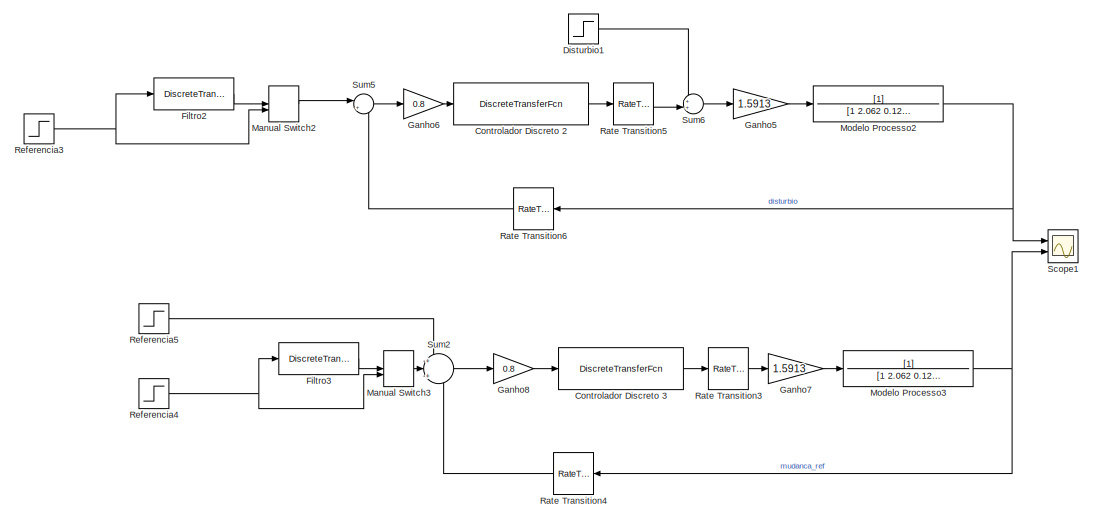
[diagram: root canvas - part 1/2, right side, full height]
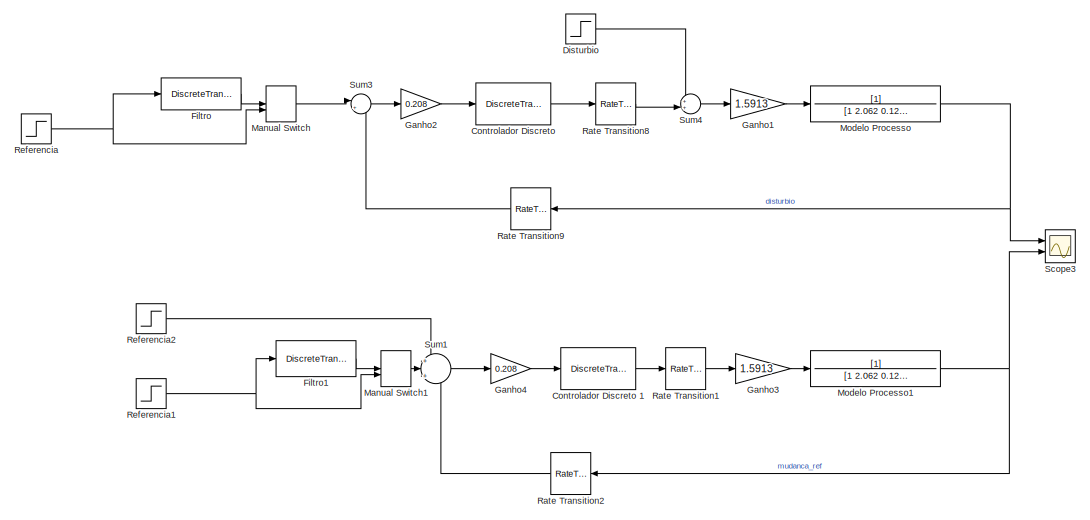
[diagram: root canvas - part 2/2, left side, full height]
MODEL slx_0c582d98c2a8
KIND model
CONFIG AbsTol = auto
CONFIG EnableMultiTasking = off
CONFIG FixedStep = auto
CONFIG MaxStep = auto
CONFIG MinStep = auto
CONFIG RelTol = 1e-3
CONFIG SampleTimeConstraint = Unconstrained
CONFIG SolverName = VariableStepAuto
CONFIG StartTime = 0.0
CONFIG StopTime = 130
BLOCK [DiscreteTransferFcn] Controlador Discreto 
  Denominator = [1 -1]
  InputPortMap = u0
  Numerator = [1 -0.9488]
  Ports = [1, 1]
BLOCK [DiscreteTransferFcn] Controlador Discreto 1
  Denominator = [1 -1]
  InputPortMap = u0
  Numerator = [1 -0.9488]
  Ports = [1, 1]
BLOCK [DiscreteTransferFcn] Controlador Discreto 2
  Denominator = [1 -1 0]
  InputPortMap = u0
  Numerator = [1 -1.106 0.171]
  Ports = [1, 1]
BLOCK [DiscreteTransferFcn] Controlador Discreto 3
  Denominator = [1 -1 0]
  InputPortMap = u0
  Numerator = [1 -1.106 0.171]
  Ports = [1, 1]
BLOCK [Step] Disturbio
  SampleTime = Ts
  Time = 35
  VectorParams1D = off
BLOCK [Step] Disturbio1
  SampleTime = Ts
  Time = 35
  VectorParams1D = off
BLOCK [DiscreteTransferFcn] Filtro
  Denominator = F_C2.den{:}
  InputPortMap = u0
  Numerator = F_C2.num{:}
  Ports = [1, 1]
BLOCK [DiscreteTransferFcn] Filtro1
  Denominator = F_C2.den{:}
  InputPortMap = u0
  Numerator = F_C2.num{:}
  Ports = [1, 1]
BLOCK [DiscreteTransferFcn] Filtro2
  Denominator = [1 -0.87]
  InputPortMap = u0
  Numerator = [0.13]
  Ports = [1, 1]
BLOCK [DiscreteTransferFcn] Filtro3
  Denominator = [1 -0.87]
  InputPortMap = u0
  Numerator = [0.13]
  Ports = [1, 1]
BLOCK [Gain] Ganho1
  Gain = 1.5913
BLOCK [Gain] Ganho2
  Gain = 0.208
BLOCK [Gain] Ganho3
  Gain = 1.5913
BLOCK [Gain] Ganho4
  Gain = 0.208
BLOCK [Gain] Ganho5
  Gain = 1.5913
BLOCK [Gain] Ganho6
  Gain = 0.8
BLOCK [Gain] Ganho7
  Gain = 1.5913
BLOCK [Gain] Ganho8
  Gain = 0.8
BLOCK [ManualSwitch] Manual Switch
  CurrentSetting = 0
BLOCK [ManualSwitch] Manual Switch1
  CurrentSetting = 0
BLOCK [ManualSwitch] Manual Switch2
BLOCK [ManualSwitch] Manual Switch3
BLOCK [TransferFcn] Modelo Processo
  Denominator = [1 2.062 0.125]
BLOCK [TransferFcn] Modelo Processo1
  Denominator = [1 2.062 0.125]
BLOCK [TransferFcn] Modelo Processo2
  Denominator = [1 2.062 0.125]
BLOCK [TransferFcn] Modelo Processo3
  Denominator = [1 2.062 0.125]
BLOCK [RateTransition] Rate Transition1
  Integrity = off
  OutPortSampleTimeOpt = Inherit
BLOCK [RateTransition] Rate Transition2
  NameLocation = top
  OutPortSampleTime = Ts
BLOCK [RateTransition] Rate Transition3
  Integrity = off
  OutPortSampleTimeOpt = Inherit
BLOCK [RateTransition] Rate Transition4
  NameLocation = top
  OutPortSampleTime = Ts
BLOCK [RateTransition] Rate Transition5
  Integrity = off
  OutPortSampleTimeOpt = Inherit
BLOCK [RateTransition] Rate Transition6
  NameLocation = top
  OutPortSampleTime = Ts
BLOCK [RateTransition] Rate Transition8
  Integrity = off
  OutPortSampleTimeOpt = Inherit
BLOCK [RateTransition] Rate Transition9
  NameLocation = top
  OutPortSampleTime = Ts
BLOCK [Step] Referencia
  SampleTime = Ts
BLOCK [Step] Referencia1
  SampleTime = Ts
BLOCK [Step] Referencia2
  SampleTime = Ts
  Time = 35
BLOCK [Step] Referencia3
  SampleTime = Ts
BLOCK [Step] Referencia4
  SampleTime = Ts
BLOCK [Step] Referencia5
  SampleTime = Ts
  Time = 35
BLOCK [Scope] Scope1
  Floating = off
  NumInputPorts = 2
  Ports = [2]
  ScopeSpecificationString = Simulink.scopes.TimeScopeBlockCfg('CurrentConfiguration', extmgr.ConfigurationSet(extmgr.Configuration('Core','General UI',true,'FigureColor',[0.8 0.8 0.8],'DisplayFullSourceName',true),extmgr.Configuration('Core','Source UI',true),extmgr.Configuration('Sources','WiredSimulink',true,'DataLoggingVariableName','ScopeData1'),extmgr.Configuration('Visuals','Time Domain',true,'SerializedDisplays',{stru...<+1842ch>
BLOCK [Scope] Scope3
  Floating = off
  NumInputPorts = 2
  Ports = [2]
  ScopeSpecificationString = Simulink.scopes.TimeScopeBlockCfg('CurrentConfiguration', extmgr.ConfigurationSet(extmgr.Configuration('Core','General UI',true,'FigureColor',[0.8 0.8 0.8],'DisplayFullSourceName',true),extmgr.Configuration('Core','Source UI',true),extmgr.Configuration('Sources','WiredSimulink',true,'DataLoggingVariableName','ScopeData2'),extmgr.Configuration('Visuals','Time Domain',true,'SerializedDisplays',{stru...<+1842ch>
BLOCK [Sum] Sum1
  Inputs = +|+|-
  Ports = [3, 1]
BLOCK [Sum] Sum2
  Inputs = +|+|-
  Ports = [3, 1]
BLOCK [Sum] Sum3
  Inputs = |+-
  Ports = [2, 1]
BLOCK [Sum] Sum4
  Inputs = ++|
  Ports = [2, 1]
BLOCK [Sum] Sum5
  Inputs = |+-
  Ports = [2, 1]
BLOCK [Sum] Sum6
  Inputs = ++|
  Ports = [2, 1]
LINE Controlador Discreto 1:1 -> Rate Transition1:1
LINE Controlador Discreto 2:1 -> Rate Transition5:1
LINE Controlador Discreto 3:1 -> Rate Transition3:1
LINE Controlador Discreto :1 -> Rate Transition8:1
LINE Disturbio1:1 -> Sum6:1
LINE Disturbio:1 -> Sum4:1
LINE Filtro1:1 -> Manual Switch1:1
LINE Filtro2:1 -> Manual Switch2:1
LINE Filtro3:1 -> Manual Switch3:1
LINE Filtro:1 -> Manual Switch:1
LINE Ganho1:1 -> Modelo Processo:1
LINE Ganho2:1 -> Controlador Discreto :1
LINE Ganho3:1 -> Modelo Processo1:1
LINE Ganho4:1 -> Controlador Discreto 1:1
LINE Ganho5:1 -> Modelo Processo2:1
LINE Ganho6:1 -> Controlador Discreto 2:1
LINE Ganho7:1 -> Modelo Processo3:1
LINE Ganho8:1 -> Controlador Discreto 3:1
LINE Manual Switch1:1 -> Sum1:2
LINE Manual Switch2:1 -> Sum5:1
LINE Manual Switch3:1 -> Sum2:2
LINE Manual Switch:1 -> Sum3:1
NET Modelo Processo1:1 -> Rate Transition2:1, Scope3:2
NET Modelo Processo2:1 -> Rate Transition6:1, Scope1:1
NET Modelo Processo3:1 -> Rate Transition4:1, Scope1:2
NET Modelo Processo:1 -> Rate Transition9:1, Scope3:1
LINE Rate Transition1:1 -> Ganho3:1
LINE Rate Transition2:1 -> Sum1:3
LINE Rate Transition3:1 -> Ganho7:1
LINE Rate Transition4:1 -> Sum2:3
LINE Rate Transition5:1 -> Sum6:2
LINE Rate Transition6:1 -> Sum5:2
LINE Rate Transition8:1 -> Sum4:2
LINE Rate Transition9:1 -> Sum3:2
NET Referencia1:1 -> Filtro1:1, Manual Switch1:2
LINE Referencia2:1 -> Sum1:1
NET Referencia3:1 -> Filtro2:1, Manual Switch2:2
NET Referencia4:1 -> Filtro3:1, Manual Switch3:2
LINE Referencia5:1 -> Sum2:1
NET Referencia:1 -> Filtro:1, Manual Switch:2
LINE Sum1:1 -> Ganho4:1
LINE Sum2:1 -> Ganho8:1
LINE Sum3:1 -> Ganho2:1
LINE Sum4:1 -> Ganho1:1
LINE Sum5:1 -> Ganho6:1
LINE Sum6:1 -> Ganho5:1
note: NET lines group one-source signal fan-out (src -> all destinations, sorted); 1:1 wires keep LINE
